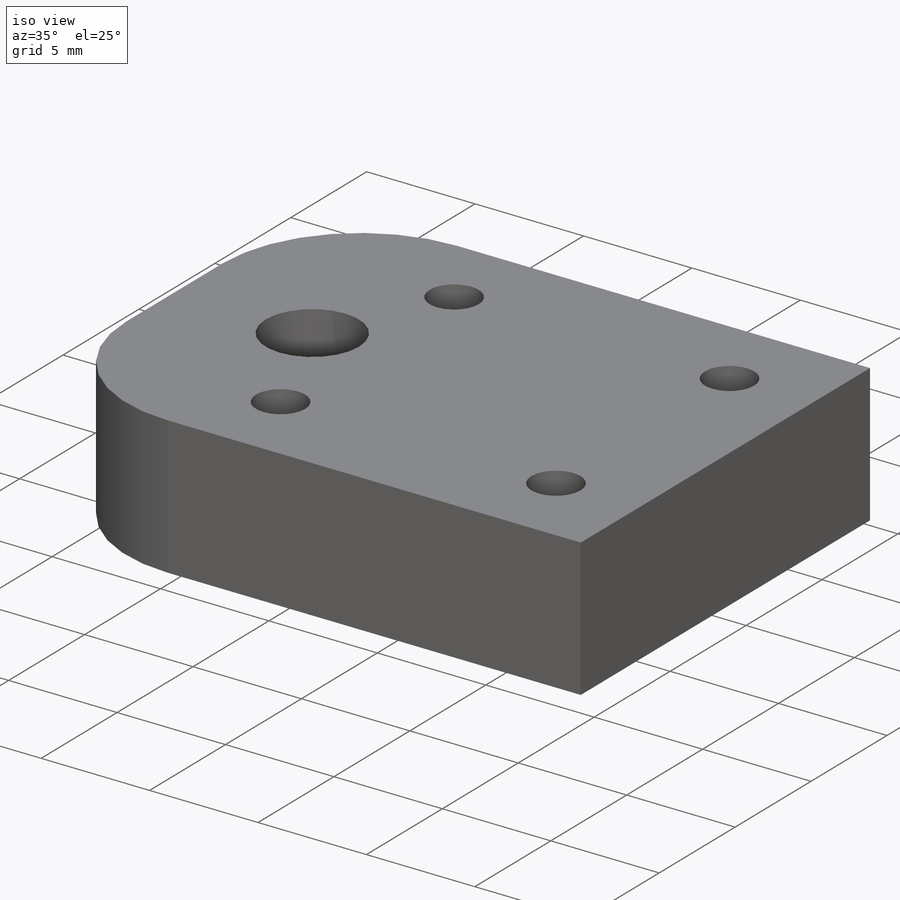
[diagram: iso view]
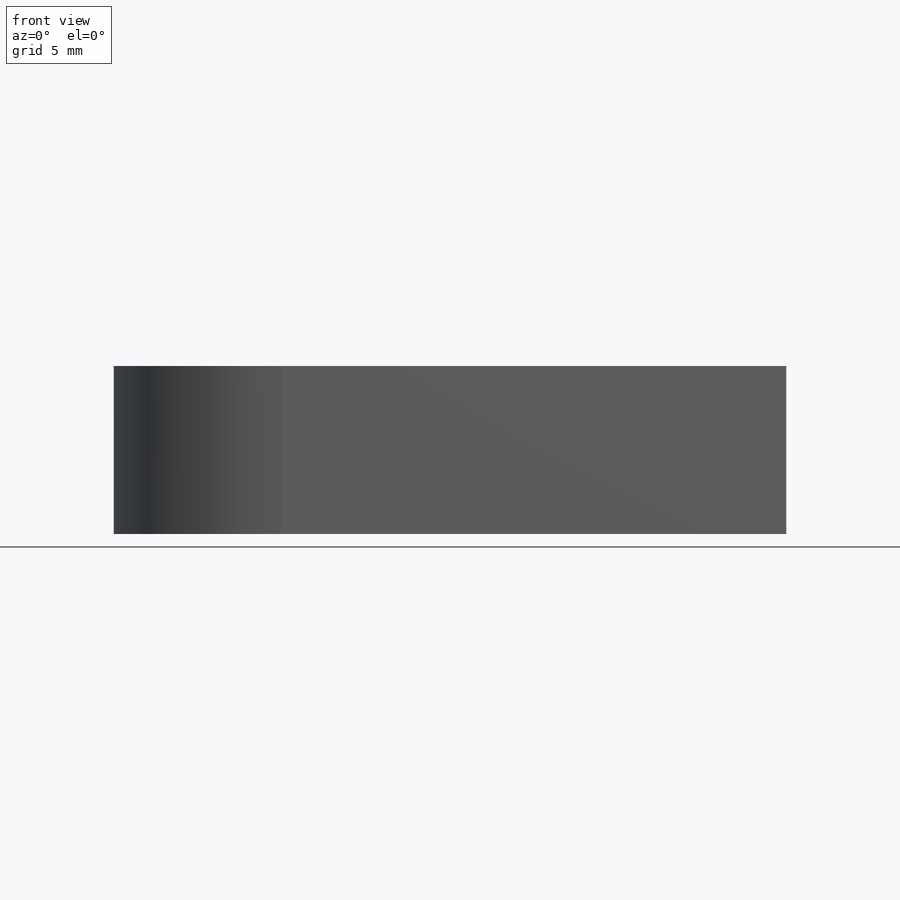
[diagram: front view]
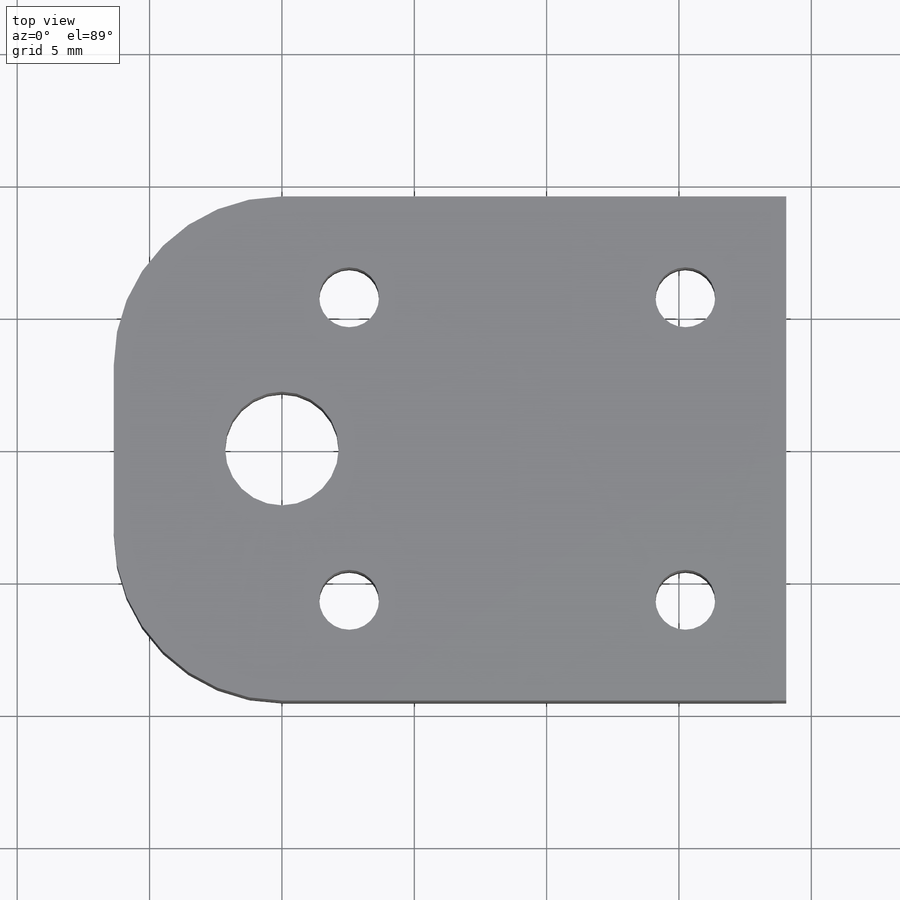
[diagram: top view]
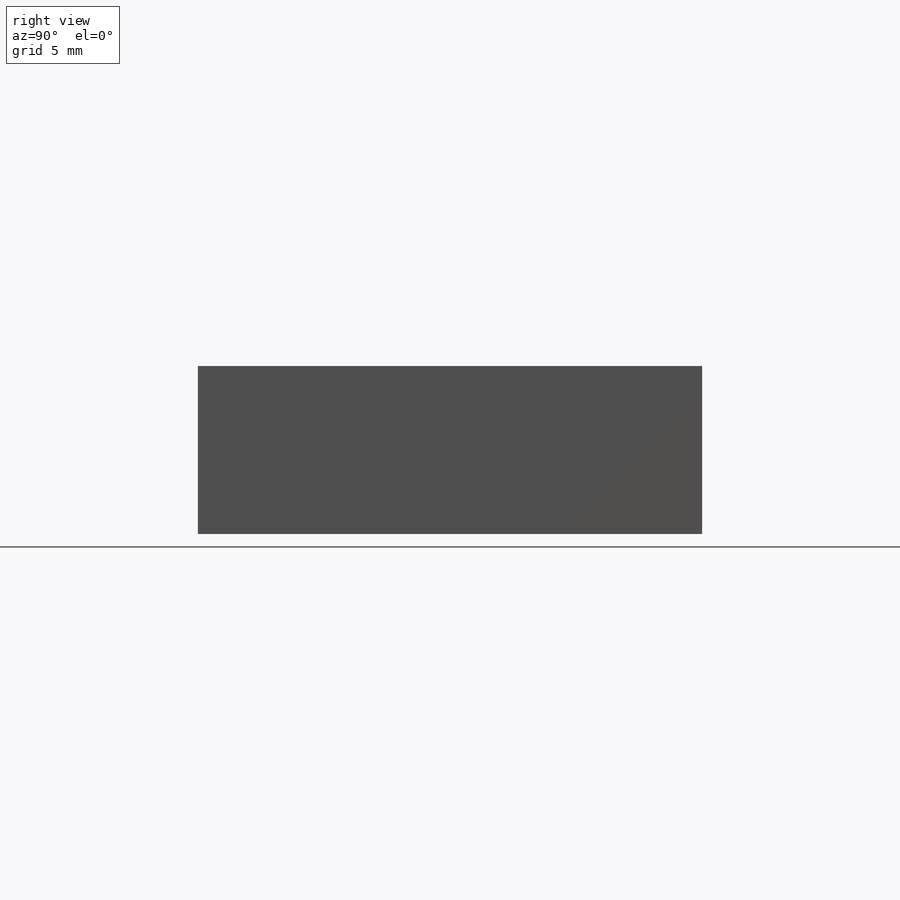
[diagram: right view]
SOLIDWORKS PART (.sldprt)
format: sldprt  version: not decoded by parser v0  size: 196,096 bytes
history: native  units: mm
features: sketch x3, material x1, extrude x1, hole x1, fillet x1 (+12 scaffold rows collapsed)
feature tree (19):
  scaffold x12  (default folders/planes/origin — collapsed)
  material  "Acrylic (BLUE)"
  sketch  "Sketch1"  dims[D1=4.2926mm D2=19.05mm D3=6.35mm D4=6.35mm D5=25.4mm D6=12.7mm D7=1.905mm]
  extrude  "Boss-Extrude1"  Depth=6.35mm
  hole  "#4-40 Tapped Hole1"  Diameter=2.2606mm Depth=7.5946mm
  sketch  "Sketch4"  dims[D1=8.89mm D2=12.7mm D3=11.43mm]
  sketch  "Sketch5"  dims[hole-wizard template sketch: 50 standard entries collapsed; hole parameters above]
  fillet  "Fillet1"  Radius=6.35mm
decode coverage: 6 of 6 modeling features carry decoded parameters
note: ~ marks probable driven/reference dimensions
note: suppression state not decoded; provenance and decode notes live in map.json
